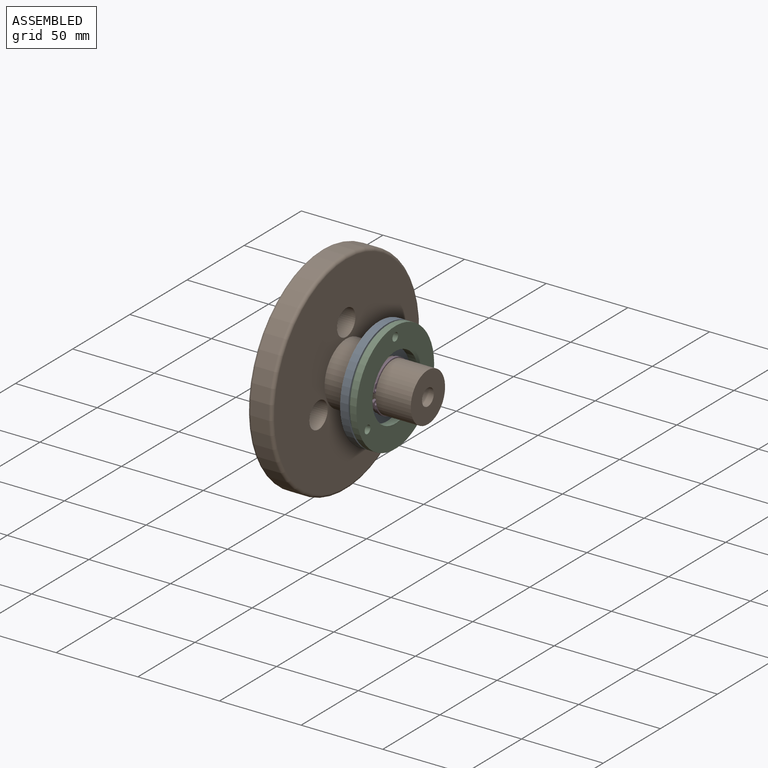
[diagram: assembled view]
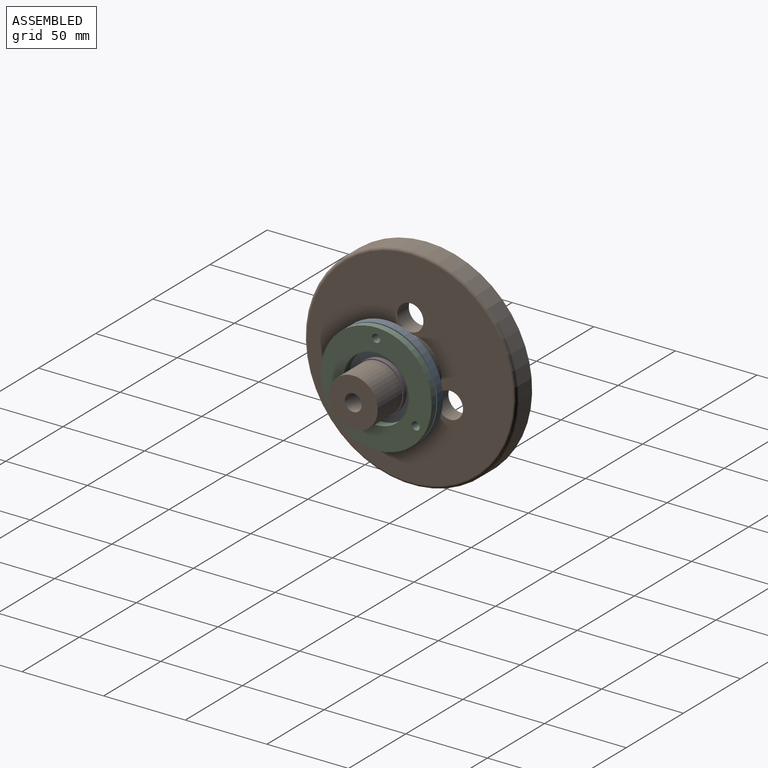
[diagram: assembled view, second angle]
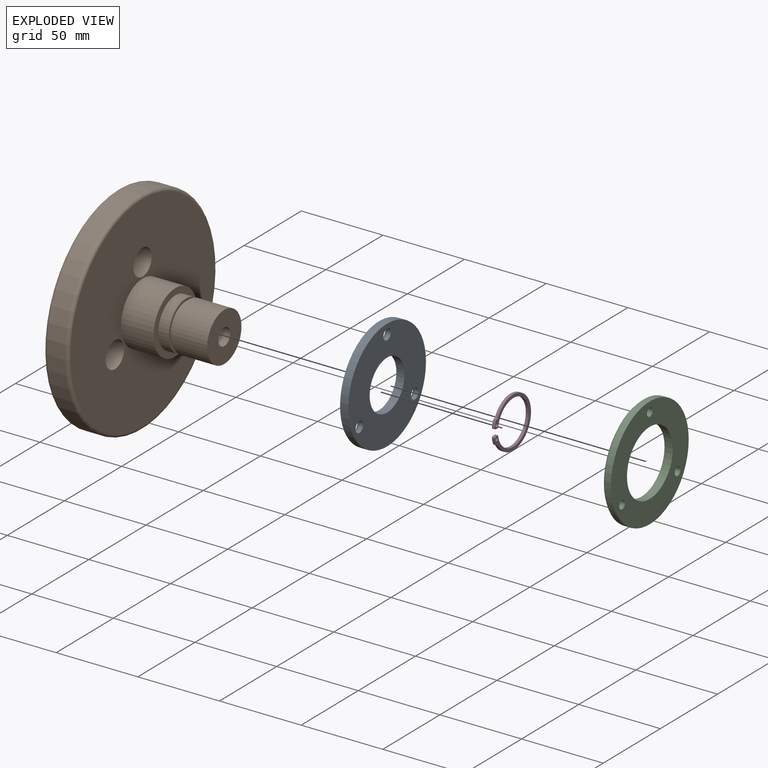
[diagram: exploded view]
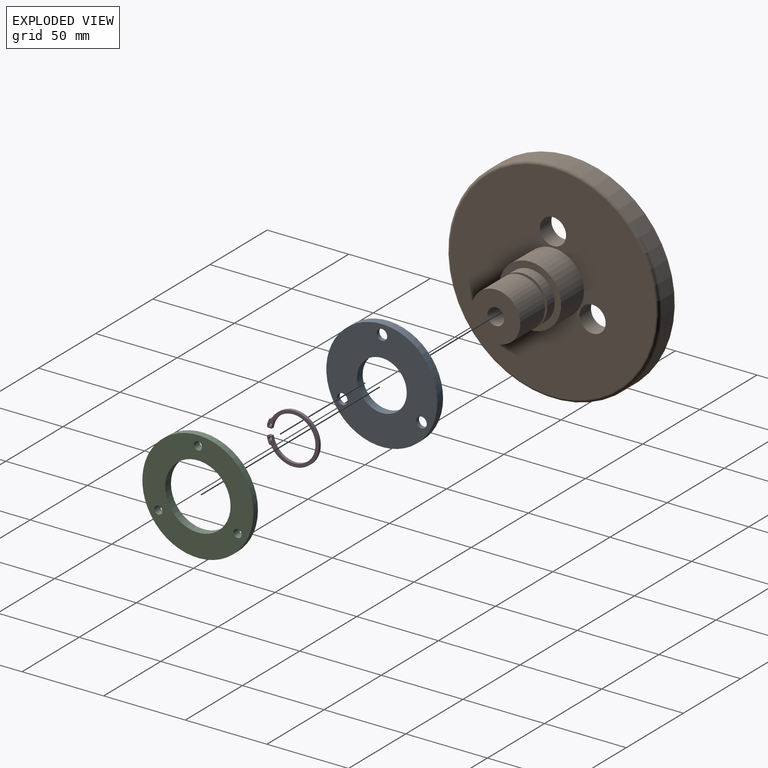
[diagram: exploded view, second angle]
ASSEMBLY  parts=4 mates=3
PART A: 10 faces, bbox 68x68x5 mm
  f0: cylinder r=3.25mm len=6.5mm, axis (0,0,-1), area 51.1mm2, adj f6,f9
  f1: cylinder r=34mm len=68mm, axis (0,0,-1), area 1068.1mm2, adj f5,f6
  f2: cylinder r=3.25mm len=6.5mm, axis (0,0,-1), area 51.1mm2, adj f6,f7
  f3: cylinder r=3.25mm len=6.5mm, axis (0,0,-1), area 51.1mm2, adj f6,f8
  f4: cylinder r=15.25mm len=30.5mm, axis (0,0,-1), area 479.1mm2, adj f5,f6
  f5: plane 68x68mm, normal (0,0,1), area 2589.5mm2, adj f1,f4,f7,f8,f9
  f6: plane 68x68mm, normal (0,0,-1), area 2801.5mm2, adj f0,f1,f2,f3,f4
  f7: cone r=3.25mm half-angle=45deg, axis (0,0,1), area 100mm2, adj f2,f5
  f8: cone r=3.25mm half-angle=45deg, axis (0,0,1), area 100mm2, adj f3,f5
  f9: cone r=3.25mm half-angle=45deg, axis (0,0,1), area 100mm2, adj f0,f5
PART B: 20 faces, bbox 65x140.7x140.7 mm
  f0: plane 30x30mm, normal (1,0,0), area 623.5mm2, adj f12,f13
  f1: plane 126x126mm, normal (-1,0,0), area 10792.9mm2, adj f2,f13,f17,f18,f19
  f2: torus R=63mm, axis (-1,0,0), area 1268.7mm2, adj f1,f3
  f3: cylinder r=65mm len=130mm, axis (-1,0,0), area 4492.5mm2, adj f2,f4
  f4: torus R=63mm, axis (-1,0,0), area 1268.7mm2, adj f3,f5
  f5: plane 126x126mm, normal (1,0,0), area 10731.7mm2, adj f4,f6,f14,f15,f16
  f6: cylinder r=19mm len=38mm, axis (-1,0,0), area 2387.6mm2, adj f5,f7
  f7: plane 38x38mm, normal (1,0,0), area 427.3mm2, adj f6,f8
  f8: cylinder r=15mm len=30mm, axis (-1,0,0), area 612.6mm2, adj f7,f9
  f9: plane 30x30mm, normal (1,0,0), area 134.3mm2, adj f8,f10
  f10: cylinder r=13.5mm len=27mm, axis (-1,0,0), area 169.6mm2, adj f9,f11
  f11: plane 30x30mm, normal (-1,0,0), area 134.3mm2, adj f10,f12
  f12: cylinder r=15mm len=30mm, axis (-1,0,0), area 2026.3mm2, adj f0,f11
  f13: cylinder r=5.15mm len=65mm, axis (1,0,0), area 2103.3mm2, adj f0,f1
  f14: cylinder r=8mm len=16mm, axis (1,0,0), area 502.7mm2, adj f5,f17
  f15: cylinder r=8mm len=16mm, axis (1,0,0), area 502.7mm2, adj f5,f18
  f16: cylinder r=8mm len=16mm, axis (1,0,0), area 502.7mm2, adj f5,f19
  f17: cone r=8mm half-angle=45deg, axis (-1,0,0), area 466.5mm2, adj f1,f14
  f18: cone r=8mm half-angle=45deg, axis (-1,0,0), area 466.5mm2, adj f1,f15
  f19: cone r=8mm half-angle=45deg, axis (-1,0,0), area 466.5mm2, adj f1,f16
PART C: 8 faces, bbox 68x68x5 mm
  f0: cylinder r=34mm len=68mm, axis (0,0,-1), area 854.5mm2, adj f2,f6
  f1: plane 66x66mm, normal (0,0,1), area 2105.7mm2, adj f3,f4,f5,f6,f7
  f2: plane 68x68mm, normal (0,0,-1), area 2316.1mm2, adj f0,f3,f4,f5,f7
  f3: cylinder r=2.5mm len=5mm, axis (0,0,-1), area 78.5mm2, adj f1,f2
  f4: cylinder r=2.5mm len=5mm, axis (0,0,-1), area 78.5mm2, adj f1,f2
  f5: cylinder r=2.5mm len=5mm, axis (0,0,-1), area 78.5mm2, adj f1,f2
  f6: cone r=33mm half-angle=45deg, axis (0,0,-1), area 297.7mm2, adj f0,f1
  f7: cylinder r=20mm len=40mm, axis (0,0,1), area 628.3mm2, adj f1,f2
PART D: 16 faces, bbox 31x31.7x1.8 mm
  f0: cylinder r=1mm len=1.8mm, axis (0,0,-1), area 1.9mm2, adj f1,f11,f12,f13
  f1: cylinder r=16.51mm len=3.48mm, axis (0,0,-1), area 6.6mm2, adj f0,f12,f13,f14
  f2: plane 1.87x1.8mm, normal (-1,0,0), area 3.4mm2, adj f3,f12,f13,f14
  f3: cylinder r=13.5mm len=27mm, axis (0,0,-1), area 145.5mm2, adj f2,f4,f12,f13
  f4: plane 1.87x1.8mm, normal (1,0,0), area 3.4mm2, adj f3,f12,f13,f15
  f5: cylinder r=16.51mm len=3.48mm, axis (0,0,-1), area 6.6mm2, adj f6,f12,f13,f15
  f6: cylinder r=1mm len=1.8mm, axis (0,0,-1), area 1.9mm2, adj f5,f7,f12,f13
  f7: cylinder r=7.3mm len=1.8mm, axis (0,0,-1), area 1.1mm2, adj f6,f8,f12,f13
  f8: cylinder r=15.5mm len=31mm, axis (0,0,-1), area 147.9mm2, adj f7,f11,f12,f13
  f9: cylinder r=1mm len=2mm, axis (0,0,-1), area 11.3mm2, adj f12,f13
  f10: cylinder r=1mm len=2mm, axis (0,0,-1), area 11.3mm2, adj f12,f13
  f11: cylinder r=7.3mm len=1.8mm, axis (0,0,-1), area 1.1mm2, adj f0,f8,f12,f13
  f12: plane 31.72x31mm, normal (0,0,1), area 178.3mm2, adj f0,f1,f2,f3,f4,f5,f6,f7
  f13: plane 31.72x31mm, normal (0,0,-1), area 178.3mm2, adj f0,f1,f2,f3,f4,f5,f6,f7
  f14: cylinder r=1mm len=1.8mm, axis (0,0,-1), area 3.2mm2, adj f1,f2,f12,f13
  f15: cylinder r=1mm len=1.8mm, axis (0,0,-1), area 3.2mm2, adj f4,f5,f12,f13
PLACE A rot(axis=(-0.58,-0.58,0.58),120deg) t=(87.17,36.35,66.27)mm
PLACE B t=(47.17,36.35,66.27)mm
PLACE C rot(axis=(-0.58,-0.58,0.58),120deg) t=(92.17,36.35,66.27)mm
PLACE D rot(axis=(0.71,0,-0.71),180deg) t=(90.47,36.35,66.27)mm
MATE revolute A.f4 <-> B.f2  axis (-1,0,0) through (82.17,36.35,66.27)mm
MATE fastened D.f3 <-> B.f2  axis (-1,0,0) through (88.67,36.35,66.27)mm
MATE fastened C.f0 <-> A.f4  axis (-1,0,0) through (87.17,36.35,66.27)mm
